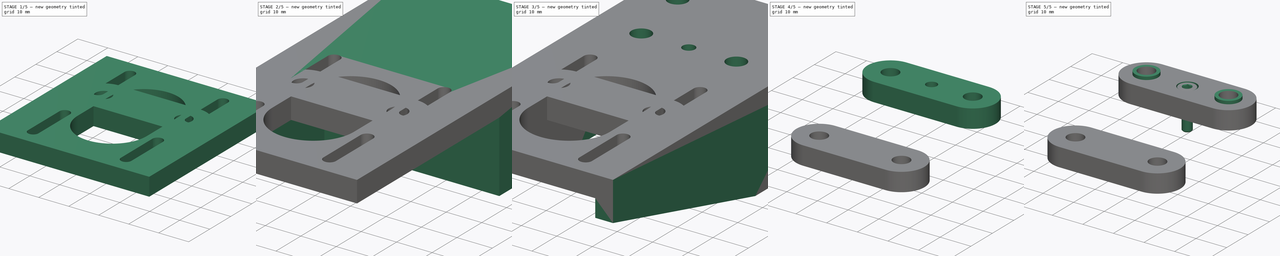
[diagram: build sequence overview — one tinted view per stage of 5, left to right]
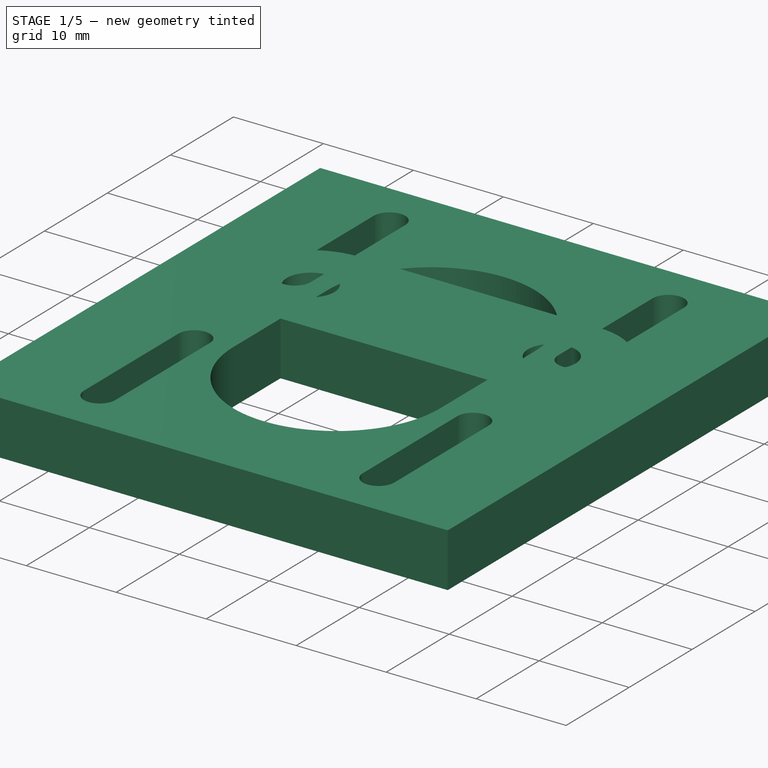
[diagram: stage 1 of 5 — iso view after this stage's code; geometry added in this stage tinted green]
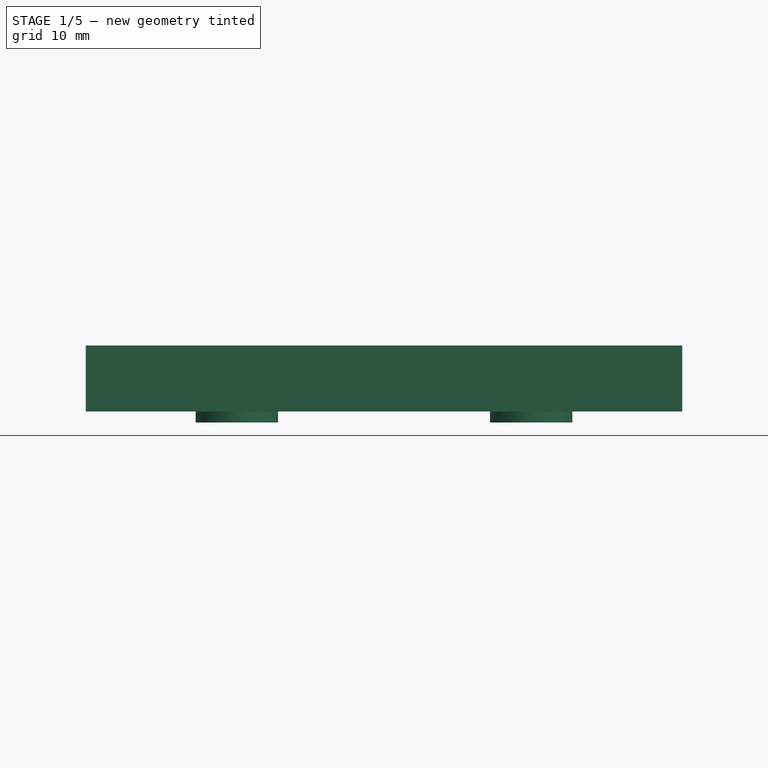
[diagram: stage 1 of 5 — front view after this stage's code; geometry added in this stage tinted green]
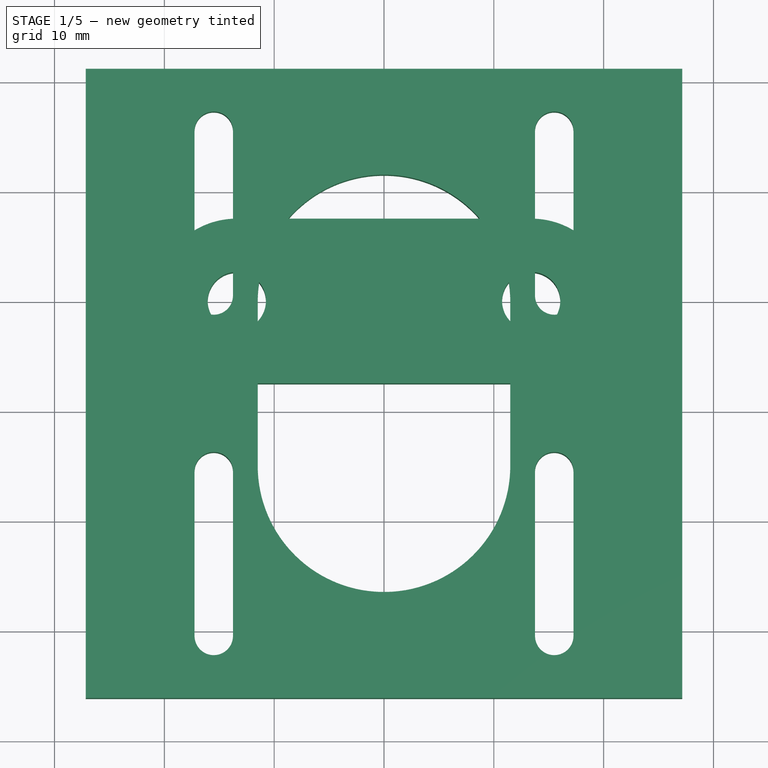
[diagram: stage 1 of 5 — top view after this stage's code; geometry added in this stage tinted green]
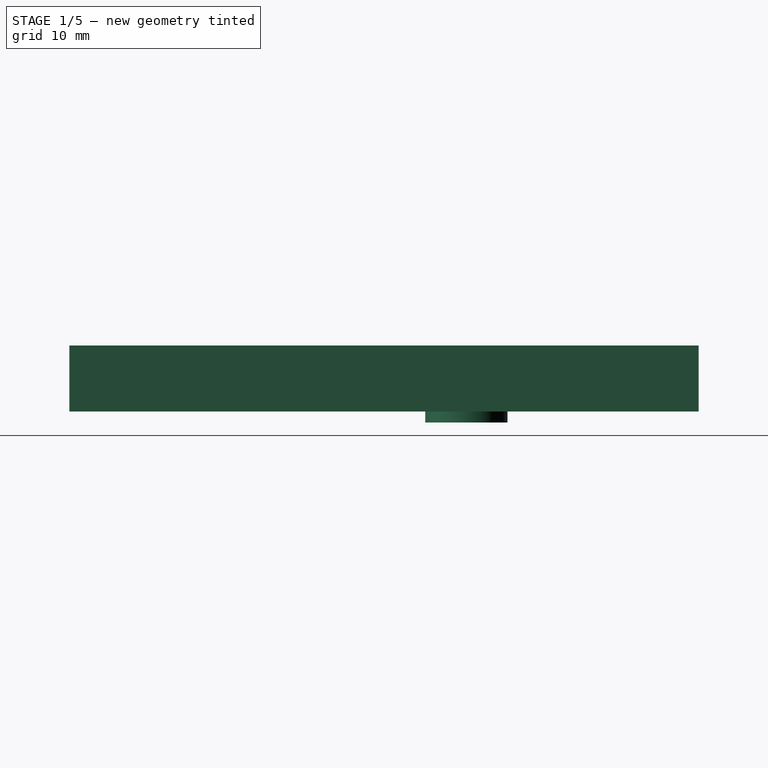
[diagram: stage 1 of 5 — right view after this stage's code; geometry added in this stage tinted green]
FCSTD DOCUMENT  (FreeCAD 0.20R27861 (Git))
Label: Z motor bracket
License: All rights reserved
LicenseURL: http://en.wikipedia.org/wiki/All_rights_reserved
objects: Sketcher::SketchObject×14, PartDesign::Pad×7, PartDesign::Pocket×7, PartDesign::Body×3, Part::Feature×1, PartDesign::ShapeBinder×1, PartDesign::Mirrored×1, PartDesign::SubShapeBinder×1, Part::FeaturePython×1
note: 50 computed .brp shape members not serialized (recipe doc carries the construction recipe); baked Part::Feature solids carry a one-line shape summary decoded from their .brp

FEATURE [Part::Feature] Part__Feature  label="17HS4401"
  Placement = pos=(0,0,-40) rot=(0,0,1;0rad)
  shape: bbox 42.3 x 45.3 x 64 mm, 44 faces (baked)
FEATURE [PartDesign::ShapeBinder] ShapeBinder
  Placement = pos=(0,0,-40) rot=(0,0,1;0rad)
  Support = -> [Part__Feature]
  TraceSupport = false
FEATURE [Sketcher::SketchObject] Sketch
  ExternalGeometry = -> [ShapeBinder]
  FullyConstrained = true
  MapMode = 5
  Support = -> [XY_Plane]
  sketch-geometry (28):
    g0: ArcOfCircle CenterX=-15.5 CenterY=15.5 CenterZ=0 NormalX=0 NormalY=0 NormalZ=1 AngleXU=0 Radius=1.75 StartAngle=0 EndAngle=3.14159
    g1: ArcOfCircle CenterX=-15.5 CenterY=0.5 CenterZ=0 NormalX=0 NormalY=0 NormalZ=1 AngleXU=0 Radius=1.75 StartAngle=3.14159 EndAngle=6.28319
    g2: LineSegment StartX=-17.25 StartY=15.5 StartZ=0 EndX=-17.25 EndY=0.5 EndZ=0
    g3: LineSegment StartX=-13.75 StartY=0.5 StartZ=0 EndX=-13.75 EndY=15.5 EndZ=0
    g4: ArcOfCircle CenterX=15.5 CenterY=15.5 CenterZ=0 NormalX=0 NormalY=0 NormalZ=1 AngleXU=0 Radius=1.75 StartAngle=3e-16 EndAngle=3.14159
    g5: ArcOfCircle CenterX=15.5 CenterY=0.5 CenterZ=0 NormalX=0 NormalY=0 NormalZ=1 AngleXU=0 Radius=1.75 StartAngle=3.14159 EndAngle=6.28319
    g6: LineSegment StartX=13.75 StartY=15.5 StartZ=0 EndX=13.75 EndY=0.5 EndZ=0
    g7: LineSegment StartX=17.25 StartY=0.5 StartZ=0 EndX=17.25 EndY=15.5 EndZ=0
    g8: ArcOfCircle CenterX=-15.5 CenterY=-15.5 CenterZ=0 NormalX=0 NormalY=0 NormalZ=1 AngleXU=0 Radius=1.75 StartAngle=5e-16 EndAngle=3.14159
    g9: ArcOfCircle CenterX=-15.5 CenterY=-30.5 CenterZ=0 NormalX=0 NormalY=0 NormalZ=1 AngleXU=0 Radius=1.75 StartAngle=3.14159 EndAngle=6.28319
    g10: LineSegment StartX=-17.25 StartY=-15.5 StartZ=0 EndX=-17.25 EndY=-30.5 EndZ=0
    g11: LineSegment StartX=-13.75 StartY=-30.5 StartZ=0 EndX=-13.75 EndY=-15.5 EndZ=0
    g12: ArcOfCircle CenterX=15.5 CenterY=-15.5 CenterZ=0 NormalX=0 NormalY=0 NormalZ=1 AngleXU=0 Radius=1.75 StartAngle=5e-16 EndAngle=3.14159
    g13: ArcOfCircle CenterX=15.5 CenterY=-30.5 CenterZ=0 NormalX=0 NormalY=0 NormalZ=1 AngleXU=0 Radius=1.75 StartAngle=3.14159 EndAngle=6.28319
    g14: LineSegment StartX=13.75 StartY=-15.5 StartZ=0 EndX=13.75 EndY=-30.5 EndZ=0
    g15: LineSegment StartX=17.25 StartY=-30.5 StartZ=0 EndX=17.25 EndY=-15.5 EndZ=0
    g16: LineSegment StartX=-27.15 StartY=21.15 StartZ=0 EndX=27.15 EndY=21.15 EndZ=0
    g17: LineSegment StartX=27.15 StartY=21.15 StartZ=0 EndX=27.15 EndY=-36.15 EndZ=0
    g18: LineSegment StartX=27.15 StartY=-36.15 StartZ=0 EndX=-27.15 EndY=-36.15 EndZ=0
    g19: LineSegment StartX=-27.15 StartY=-36.15 StartZ=0 EndX=-27.15 EndY=21.15 EndZ=0
    g20: LineSegment StartX=-15.5 StartY=15.5 StartZ=0 EndX=-15.5 EndY=21.15 EndZ=0
    g21: LineSegment StartX=-15.5 StartY=-30.5 StartZ=0 EndX=-15.5 EndY=-36.15 EndZ=0
    g22: ArcOfCircle CenterX=0 CenterY=0 CenterZ=0 NormalX=0 NormalY=0 NormalZ=1 AngleXU=0 Radius=11.5 StartAngle=0 EndAngle=3.14159
    g23: ArcOfCircle CenterX=0 CenterY=-15 CenterZ=0 NormalX=0 NormalY=0 NormalZ=1 AngleXU=0 Radius=11.5 StartAngle=3.14159 EndAngle=6.28319
    g24: LineSegment StartX=-11.5 StartY=1.4e-15 StartZ=0 EndX=-11.5 EndY=-15 EndZ=0
    g25: LineSegment StartX=11.5 StartY=-15 StartZ=0 EndX=11.5 EndY=0 EndZ=0
    g26: LineSegment StartX=-15.5 StartY=15.5 StartZ=0 EndX=-15.5 EndY=0.5 EndZ=0
    g27: LineSegment StartX=0 StartY=0 StartZ=0 EndX=0 EndY=-15 EndZ=0
  constraints (66):
    c: Tangent(g0,g2) = -1.5708
    c: Tangent(g2,g1) = -1.5708
    c: Tangent(g1,g3) = -1.5708
    c: Tangent(g3,g0) = -1.5708
    c: Equal(g0,g1)
    c: Vertical(g1,g0)
    c: Coincident(g0,g-5)
    c: Diameter(g0) = 3.5
    c: DistanceY(g1,g0) = 15
    c: Tangent(g4,g6) = -1.5708
    c: Tangent(g6,g5) = -1.5708
    c: Tangent(g5,g7) = -1.5708
    c: Tangent(g7,g4) = -1.5708
    c: Equal(g4,g5)
    c: Vertical(g5,g4)
    c: Coincident(g4,g-4)
    c: Equal(g4,g0)
    c: Equal(g3,g6)
    c: Tangent(g8,g10) = -1.5708
    c: Tangent(g10,g9) = -1.5708
    c: Tangent(g9,g11) = -1.5708
    c: Tangent(g11,g8) = -1.5708
    c: Equal(g8,g9)
    c: Coincident(g8,g-6)
    c: Vertical(g10)
    c: Equal(g8,g0)
    c: Equal(g3,g11)
    c: Tangent(g12,g14) = -1.5708
    c: Tangent(g14,g13) = -1.5708
    c: Tangent(g13,g15) = -1.5708
    c: Tangent(g15,g12) = -1.5708
    c: Equal(g12,g13)
    c: Coincident(g12,g-7)
    c: Vertical(g14)
    c: Equal(g0,g12)
    c: Equal(g14,g3)
    c: Coincident(g16,g17)
    c: Coincident(g17,g18)
    c: Coincident(g18,g19)
    c: Coincident(g19,g16)
    c: Horizontal(g18)
    c: Vertical(g17)
    c: Vertical(g19)
    c: Horizontal(g16,g-9)
    c: Coincident(g20,g0)
    c: PointOnObject(g20,g16)
    c: Vertical(g20)
    c: Coincident(g21,g9)
    c: PointOnObject(g21,g18)
    c: Vertical(g21)
    c: Equal(g20,g21)
    c: Symmetric(g16,g16,g-2)
    c: DistanceX(g-8,g16) = 6
    c: Tangent(g22,g24) = -1.5708
    c: Tangent(g24,g23) = -1.5708
    c: Tangent(g23,g25) = -1.5708
    c: Tangent(g25,g22) = -1.5708
    c: Equal(g22,g23)
    c: Coincident(g22,g-1)
    c: PointOnObject(g23,g-2)
    c: Diameter(g22) = 23
    c: Coincident(g26,g0)
    c: Coincident(g26,g1)
    c: Coincident(g27,g22)
    c: Coincident(g27,g23)
    c: Equal(g27,g26)
FEATURE [PartDesign::Pad] Pad
  Direction = (0,0,1)
  Length = 6
  Length2 = 100
  Profile = -> Sketch
  ReferenceAxis = -> Sketch [N_Axis]
  Refine = true
  Type = 0
FEATURE [PartDesign::Body] Body001
  Group = -> [Binder,Sketch009,Pad003,Sketch010,Pad004,Sketch011,Pocket006]
  Origin = -> Origin001
  Tip = -> Pocket006
FEATURE [Sketcher::SketchObject] Sketch012
  FullyConstrained = true
  MapMode = 5
  Support = -> [XY_Plane002]
  sketch-geometry (6):
    g0: Circle CenterX=-13.4 CenterY=0 CenterZ=0 NormalX=0 NormalY=0 NormalZ=1 AngleXU=0 Radius=2.65
    g1: Circle CenterX=13.4 CenterY=0 CenterZ=0 NormalX=0 NormalY=0 NormalZ=1 AngleXU=0 Radius=2.65
    g2: ArcOfCircle CenterX=-13.4 CenterY=0 CenterZ=0 NormalX=0 NormalY=0 NormalZ=1 AngleXU=0 Radius=7.5 StartAngle=1.5708 EndAngle=4.71239
    g3: ArcOfCircle CenterX=13.4 CenterY=0 CenterZ=0 NormalX=0 NormalY=0 NormalZ=1 AngleXU=0 Radius=7.5 StartAngle=4.71238 EndAngle=7.85398
    g4: LineSegment StartX=-13.4 StartY=7.5 StartZ=0 EndX=13.4 EndY=7.5 EndZ=0
    g5: LineSegment StartX=-13.4 StartY=-7.5 StartZ=0 EndX=13.4 EndY=-7.5 EndZ=0
  constraints (17):
    c: PointOnObject(g0,g-1)
    c: DistanceX(g0,g-1) = 13.4
    c: Diameter(g0) = 5.3
    c: Symmetric(g1,g0,g-1)
    c: Equal(g0,g1)
    c: Coincident(g2,g0)
    c: Coincident(g3,g1)
    c: Diameter(g3) = 15
    c: Coincident(g4,g2)
    c: Coincident(g4,g3)
    c: Horizontal(g4)
    c: Coincident(g5,g2)
    c: Coincident(g5,g3)
    c: Horizontal(g5)
    c: Vertical(g3,g1)
    c: Vertical(g2,g0)
    c: Vertical(g0,g2)
FEATURE [PartDesign::Pad] Pad005
  Direction = (0,0,1)
  Length = 6
  Length2 = 10
  Profile = -> Sketch012
  ReferenceAxis = -> Sketch012 [N_Axis]
  Refine = true
  Type = 0
FEATURE [Sketcher::SketchObject] Sketch014
  FullyConstrained = false
  MapMode = 5
  Placement = pos=(0,0,0) rot=(1,0,0;3.14159rad)
  sketch-geometry (4):
    g0: Circle CenterX=-13.4 CenterY=0 CenterZ=0 NormalX=0 NormalY=0 NormalZ=1 AngleXU=0 Radius=3.75
    g1: Circle CenterX=13.4 CenterY=0 CenterZ=0 NormalX=0 NormalY=0 NormalZ=1 AngleXU=0 Radius=3.75
    g2: Circle CenterX=-13.4 CenterY=0 CenterZ=0 NormalX=0 NormalY=0 NormalZ=1 AngleXU=0 Radius=2.65
    g3: Circle CenterX=13.4 CenterY=0 CenterZ=0 NormalX=0 NormalY=0 NormalZ=1 AngleXU=0 Radius=2.65
  constraints (4):
    c: Coincident(g2,g0)
    c: Coincident(g3,g1)
    c: Diameter(g0) = 7.5
    c: Equal(g0,g1)
FEATURE [PartDesign::Pad] Pad006
  BaseFeature = -> Pad005
  Direction = (0,0,-1)
  Length = 1
  Length2 = 10
  Profile = -> Sketch014
  ReferenceAxis = -> Sketch014 [N_Axis]
  Refine = true
  Type = 0
FEATURE [PartDesign::Body] Body002
  Group = -> [Sketch012,Pad005,Sketch014,Pad006]
  Origin = -> Origin002
  Placement = pos=(0,33.1,25) rot=(0,0,1;0rad)
  Tip = -> Pad006
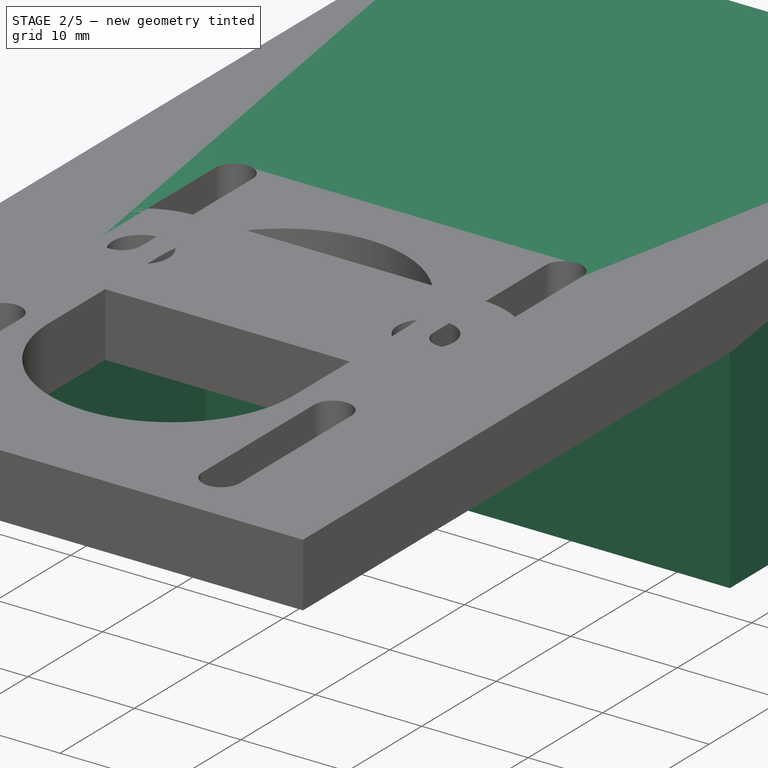
[diagram: stage 2 of 5 — iso view after this stage's code; geometry added in this stage tinted green]
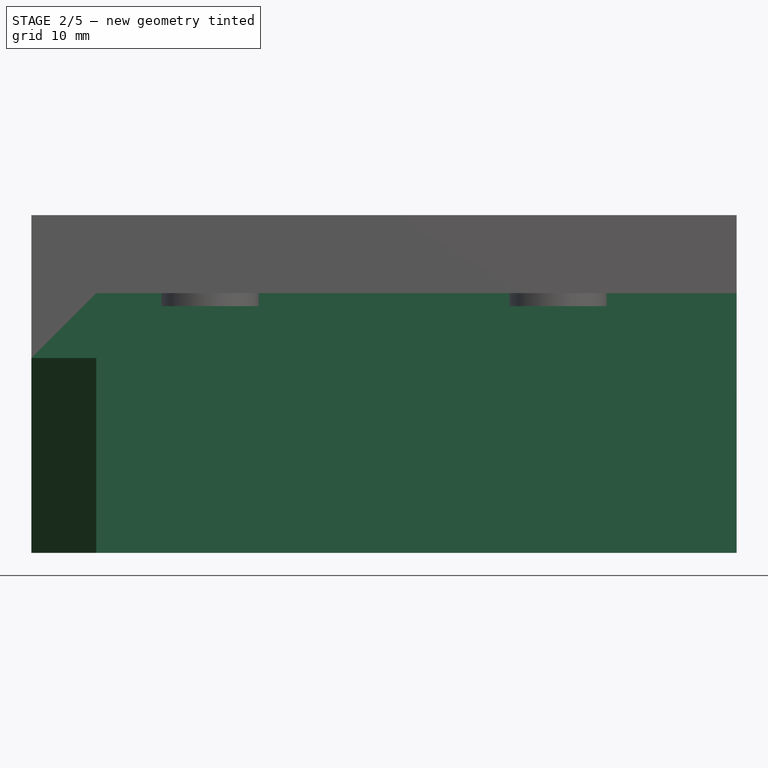
[diagram: stage 2 of 5 — front view after this stage's code; geometry added in this stage tinted green]
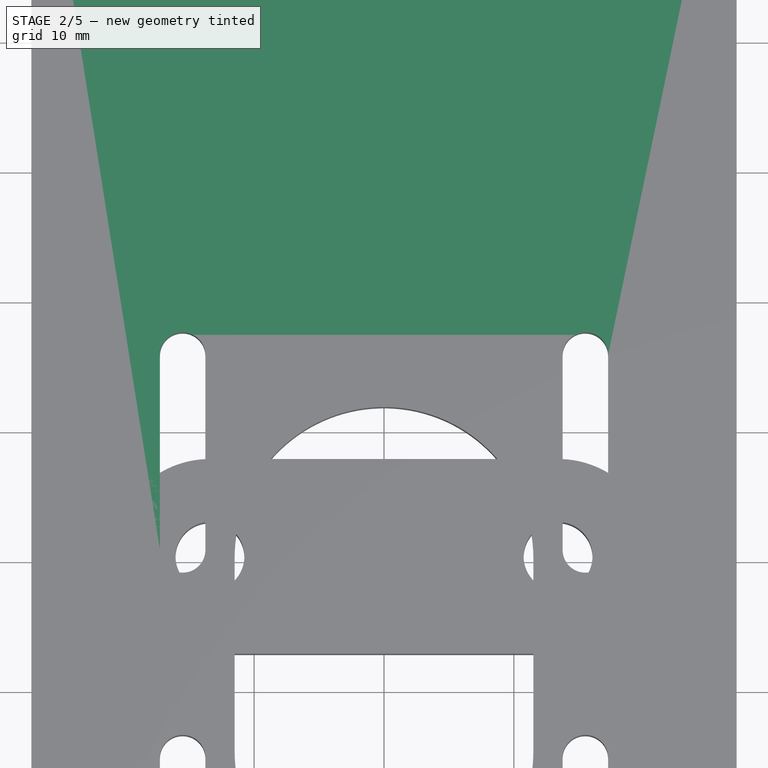
[diagram: stage 2 of 5 — top view after this stage's code; geometry added in this stage tinted green]
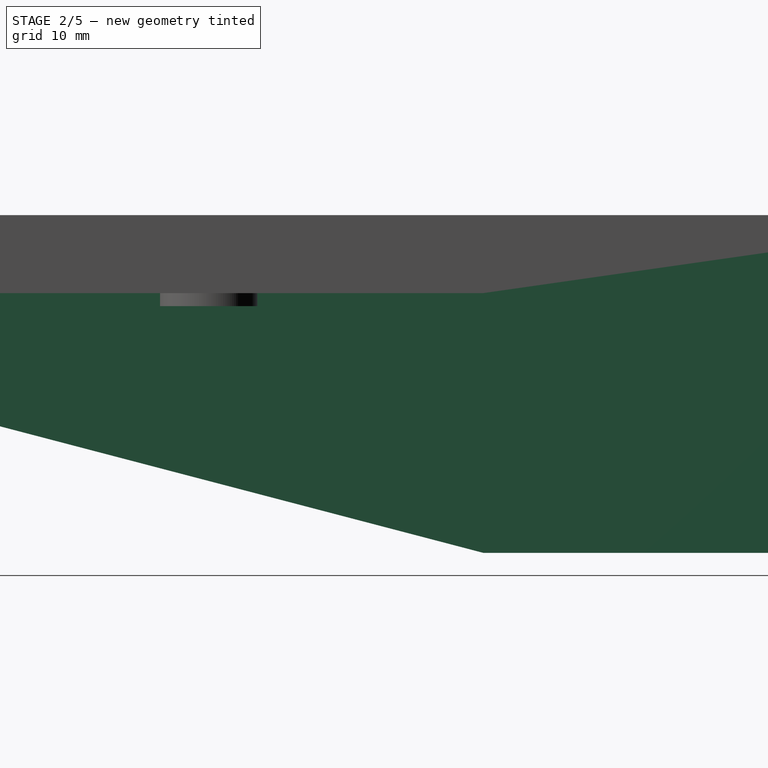
[diagram: stage 2 of 5 — right view after this stage's code; geometry added in this stage tinted green]
FEATURE [Sketcher::SketchObject] Sketch001
  ExternalGeometry = -> [Pad]
  FullyConstrained = true
  MapMode = 5
  Placement = pos=(0,21.15,0) rot=(0,0.707107,0.707107;3.14159rad)
  Support = -> [Pad]
  sketch-geometry (4):
    g0: LineSegment StartX=-27.15 StartY=6 StartZ=0 EndX=27.15 EndY=6 EndZ=0
    g1: LineSegment StartX=27.15 StartY=6 StartZ=0 EndX=27.15 EndY=-20 EndZ=0
    g2: LineSegment StartX=27.15 StartY=-20 StartZ=0 EndX=-27.15 EndY=-20 EndZ=0
    g3: LineSegment StartX=-27.15 StartY=-20 StartZ=0 EndX=-27.15 EndY=6 EndZ=0
  constraints (10):
    c: Coincident(g0,g1)
    c: Coincident(g1,g2)
    c: Coincident(g2,g3)
    c: Coincident(g3,g0)
    c: Horizontal(g2)
    c: Vertical(g1)
    c: Vertical(g3)
    c: Coincident(g0,g-3)
    c: Coincident(g-4,g0)
    c: DistanceY(g1,g-1) = 20
FEATURE [PartDesign::Pad] Pad001
  BaseFeature = -> Pad
  Direction = (0,1,-2e-16)
  Length = 42
  Length2 = 100
  Profile = -> Sketch001
  ReferenceAxis = -> Sketch001 [N_Axis]
  Refine = true
  Type = 0
FEATURE [Sketcher::SketchObject] Sketch002
  ExternalGeometry = -> [Pad001]
  FullyConstrained = true
  MapMode = 5
  Placement = pos=(27.15,0,0) rot=(0.57735,0.57735,0.57735;2.0944rad)
  Support = -> [Pad001]
  sketch-geometry (4):
    g0: LineSegment StartX=43.15 StartY=0 StartZ=0 EndX=63.15 EndY=0 EndZ=0
    g1: LineSegment StartX=63.15 StartY=0 StartZ=0 EndX=63.15 EndY=-20 EndZ=0
    g2: LineSegment StartX=63.15 StartY=-20 StartZ=0 EndX=43.15 EndY=-20 EndZ=0
    g3: LineSegment StartX=43.15 StartY=-20 StartZ=0 EndX=43.15 EndY=0 EndZ=0
  constraints (11):
    c: Coincident(g0,g1)
    c: Coincident(g1,g2)
    c: Coincident(g2,g3)
    c: Coincident(g3,g0)
    c: Horizontal(g0)
    c: Horizontal(g2)
    c: Vertical(g1)
    c: Vertical(g3)
    c: PointOnObject(g0,g-1)
    c: Coincident(g1,g-3)
    c: DistanceX(g2,g2) = 20
FEATURE [PartDesign::Pocket] Pocket
  BaseFeature = -> Pad001
  Direction = (-1,0,0)
  Length = 5
  Length2 = 100
  Profile = -> Sketch002
  ReferenceAxis = -> Sketch002 [N_Axis]
  Refine = true
  Type = 1
FEATURE [Sketcher::SketchObject] Sketch003
  ExternalGeometry = -> [Pocket]
  FullyConstrained = true
  MapMode = 5
  Placement = pos=(-27.15,0,0) rot=(0.57735,-0.57735,-0.57735;2.0944rad)
  Support = -> [Pocket]
  sketch-geometry (4):
    g0: LineSegment StartX=36.15 StartY=0 StartZ=0 EndX=36.15 EndY=-5 EndZ=0
    g1: LineSegment StartX=-21.15 StartY=-20 StartZ=0 EndX=36.15 EndY=-5 EndZ=0
    g2: LineSegment StartX=-21.15 StartY=-20 StartZ=0 EndX=-21.15 EndY=0 EndZ=0
    g3: LineSegment StartX=-21.15 StartY=0 StartZ=0 EndX=36.15 EndY=0 EndZ=0
  constraints (10):
    c: Coincident(g0,g-3)
    c: Vertical(g0)
    c: DistanceY(g0,g0) = 5
    c: Coincident(g1,g-4)
    c: Coincident(g1,g0)
    c: Coincident(g2,g1)
    c: PointOnObject(g2,g-1)
    c: Vertical(g2)
    c: Coincident(g3,g2)
    c: Coincident(g3,g0)
FEATURE [PartDesign::Pad] Pad002
  BaseFeature = -> Pocket
  Direction = (-1,0,0)
  Length = 5
  Length2 = 100
  Profile = -> Sketch003
  ReferenceAxis = -> Sketch003 [N_Axis]
  Refine = true
  Reversed = true
  Type = 0
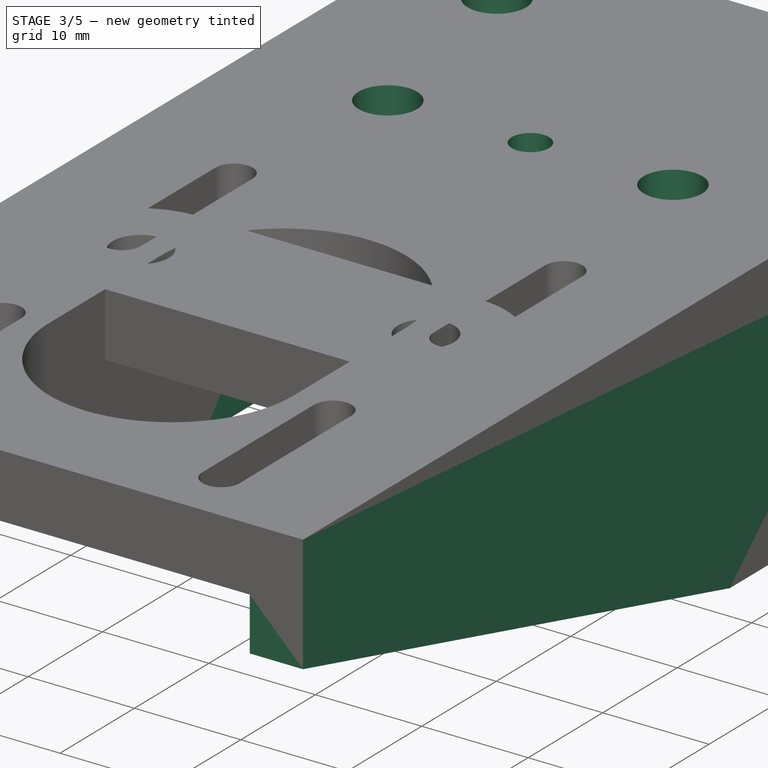
[diagram: stage 3 of 5 — iso view after this stage's code; geometry added in this stage tinted green]
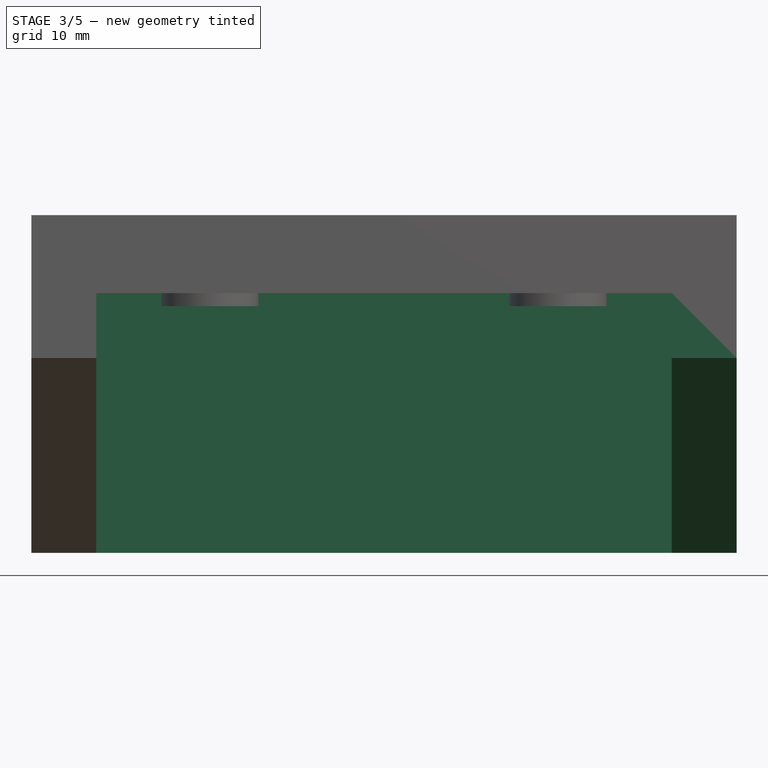
[diagram: stage 3 of 5 — front view after this stage's code; geometry added in this stage tinted green]
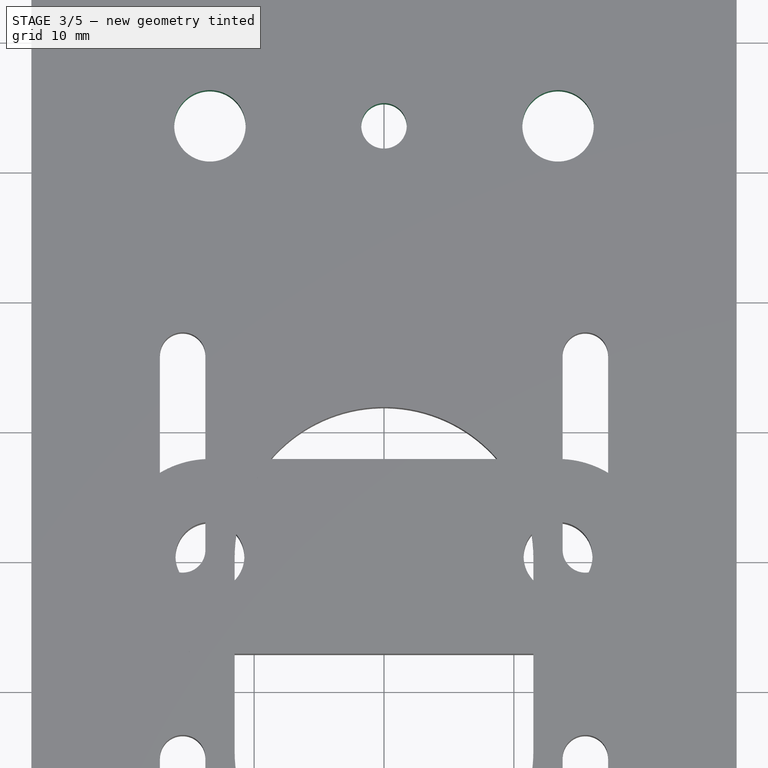
[diagram: stage 3 of 5 — top view after this stage's code; geometry added in this stage tinted green]
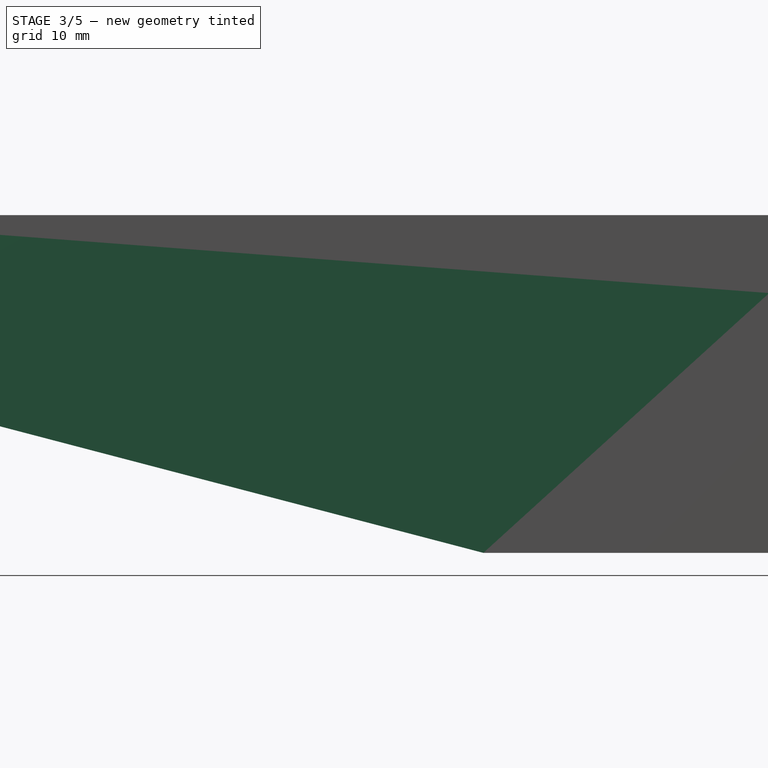
[diagram: stage 3 of 5 — right view after this stage's code; geometry added in this stage tinted green]
FEATURE [PartDesign::Mirrored] Mirrored
  BaseFeature = -> Pad002
  MirrorPlane = -> YZ_Plane
  Originals = -> [Pad002]
  Overlap = 0
  Refine = true
FEATURE [Sketcher::SketchObject] Sketch004
  ExternalGeometry = -> [Mirrored]
  FullyConstrained = true
  MapMode = 5
  Placement = pos=(0,0,0) rot=(1,0,0;3.14159rad)
  Support = -> [Mirrored]
  sketch-geometry (2):
    g0: Circle CenterX=-17.15 CenterY=-53.15 CenterZ=0 NormalX=0 NormalY=0 NormalZ=1 AngleXU=0 Radius=2.75
    g1: Circle CenterX=17.15 CenterY=-53.15 CenterZ=0 NormalX=0 NormalY=0 NormalZ=1 AngleXU=0 Radius=2.75
  constraints (5):
    c: Symmetric(g0,g1,g-2)
    c: DistanceY(g0,g-3) = 10
    c: Diameter(g0) = 5.5
    c: Equal(g0,g1)
    c: DistanceX(g-3,g0) = 10
FEATURE [PartDesign::Pocket] Pocket001
  BaseFeature = -> Mirrored
  Direction = (0,0,1)
  Length = 5
  Length2 = 100
  Profile = -> Sketch004
  ReferenceAxis = -> Sketch004 [N_Axis]
  Refine = true
  Type = 1
FEATURE [Sketcher::SketchObject] Sketch005
  ExternalGeometry = -> [Pocket001]
  FullyConstrained = true
  MapMode = 5
  Placement = pos=(0,21.15,-3e-15) rot=(1,0,0;1.5708rad)
  Support = -> [Pocket001]
  sketch-geometry (4):
    g0: LineSegment StartX=-22.15 StartY=0 StartZ=0 EndX=22.15 EndY=0 EndZ=0
    g1: LineSegment StartX=22.15 StartY=0 StartZ=0 EndX=22.15 EndY=-20 EndZ=0
    g2: LineSegment StartX=22.15 StartY=-20 StartZ=0 EndX=-22.15 EndY=-20 EndZ=0
    g3: LineSegment StartX=-22.15 StartY=-20 StartZ=0 EndX=-22.15 EndY=0 EndZ=0
  constraints (10):
    c: Coincident(g0,g1)
    c: Coincident(g1,g2)
    c: Coincident(g2,g3)
    c: Coincident(g3,g0)
    c: Horizontal(g0)
    c: Horizontal(g2)
    c: Vertical(g1)
    c: Vertical(g3)
    c: Coincident(g0,g-3)
    c: Coincident(g1,g-4)
FEATURE [PartDesign::Pocket] Pocket002
  BaseFeature = -> Pocket001
  Direction = (0,1,-4e-16)
  Length = 0
  Length2 = 100
  Offset = -6
  Profile = -> Sketch005
  ReferenceAxis = -> Sketch005 [N_Axis]
  Refine = true
  Type = 3
  UpToFace = -> Pocket001 [Face32]
FEATURE [Sketcher::SketchObject] Sketch006
  ExternalGeometry = -> [Pocket002]
  FullyConstrained = true
  MapMode = 5
  Placement = pos=(0,0,1.6e-15) rot=(1,0,0;3.14159rad)
  Support = -> [Pocket002]
  sketch-geometry (3):
    g0: Circle CenterX=-13.4 CenterY=-33.15 CenterZ=0 NormalX=0 NormalY=0 NormalZ=1 AngleXU=0 Radius=2.75
    g1: Circle CenterX=13.4 CenterY=-33.15 CenterZ=0 NormalX=0 NormalY=0 NormalZ=1 AngleXU=0 Radius=2.75
    g2: Circle CenterX=0 CenterY=-33.15 CenterZ=0 NormalX=0 NormalY=0 NormalZ=1 AngleXU=0 Radius=1.75
  constraints (8):
    c: Equal(g0,g1)
    c: DistanceY(g-3,g0) = 10
    c: DistanceX(g-3,g0) = 13.75
    c: Diameter(g0) = 5.5
    c: Symmetric(g0,g1,g-2)
    c: PointOnObject(g2,g-2)
    c: Horizontal(g2,g1)
    c: Diameter(g2) = 3.5
FEATURE [PartDesign::Pocket] Pocket003
  BaseFeature = -> Pocket002
  Direction = (0,4e-16,1)
  Length = 5
  Length2 = 100
  Profile = -> Sketch006
  ReferenceAxis = -> Sketch006 [N_Axis]
  Refine = true
  Type = 1
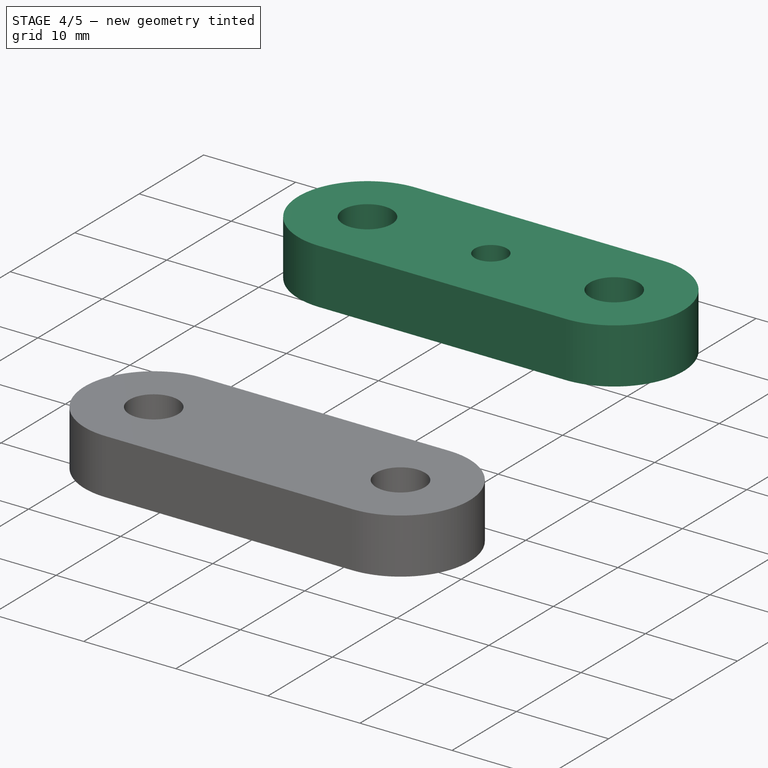
[diagram: stage 4 of 5 — iso view after this stage's code; geometry added in this stage tinted green]
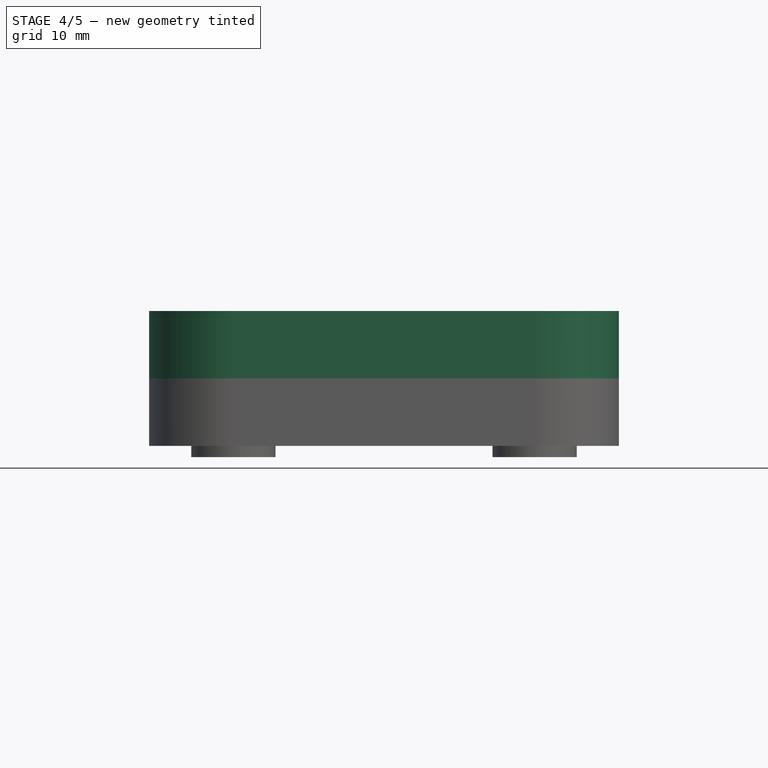
[diagram: stage 4 of 5 — front view after this stage's code; geometry added in this stage tinted green]
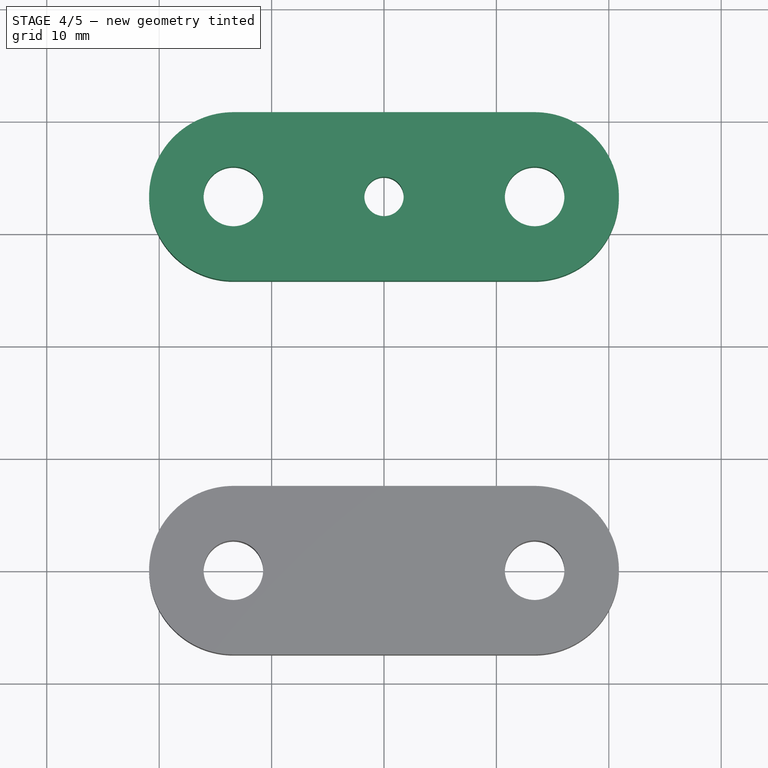
[diagram: stage 4 of 5 — top view after this stage's code; geometry added in this stage tinted green]
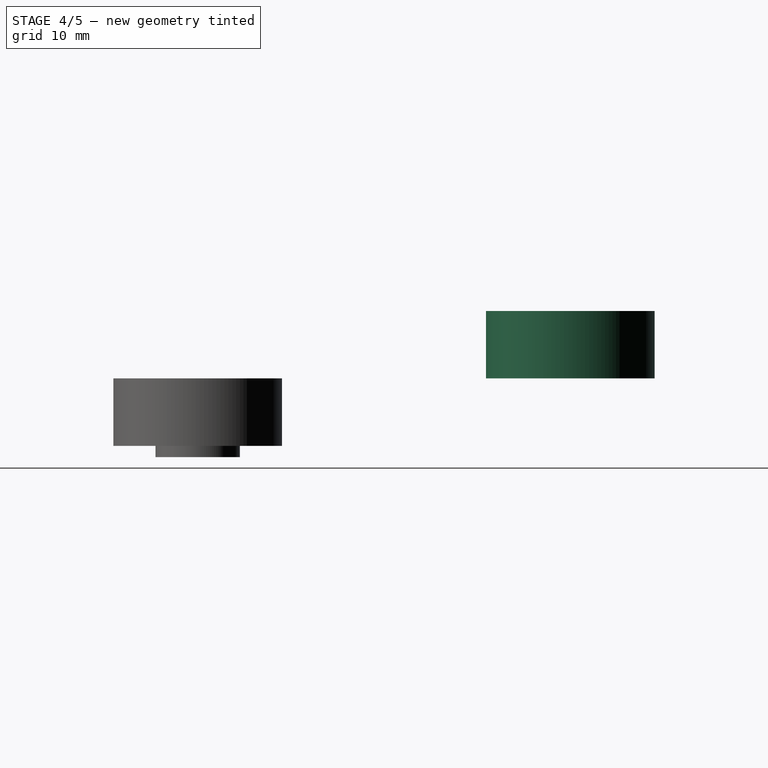
[diagram: stage 4 of 5 — right view after this stage's code; geometry added in this stage tinted green]
FEATURE [Sketcher::SketchObject] Sketch007
  ExternalGeometry = -> [Pocket003]
  FullyConstrained = true
  MapMode = 5
  Placement = pos=(0,0,-3.3e-15) rot=(1,0,0;3.14159rad)
  Support = -> [Pocket003]
  sketch-geometry (21):
    g0: LineSegment StartX=18.15 StartY=-33.15 StartZ=0 EndX=15.775 EndY=-29.0364 EndZ=0
    g1: LineSegment StartX=15.775 StartY=-29.0364 StartZ=0 EndX=11.025 EndY=-29.0364 EndZ=0
    g2: LineSegment StartX=11.025 StartY=-29.0364 StartZ=0 EndX=8.65 EndY=-33.15 EndZ=0
    g3: LineSegment StartX=8.65 StartY=-33.15 StartZ=0 EndX=11.025 EndY=-37.2636 EndZ=0
    g4: LineSegment StartX=11.025 StartY=-37.2636 StartZ=0 EndX=15.775 EndY=-37.2636 EndZ=0
    g5: LineSegment StartX=15.775 StartY=-37.2636 StartZ=0 EndX=18.15 EndY=-33.15 EndZ=0
    g6: Circle CenterX=13.4 CenterY=-33.15 CenterZ=0 NormalX=0 NormalY=0 NormalZ=1 AngleXU=0 Radius=4.75
    g7: LineSegment StartX=-8.65 StartY=-33.15 StartZ=0 EndX=-11.025 EndY=-29.0364 EndZ=0
    g8: LineSegment StartX=-11.025 StartY=-29.0364 StartZ=0 EndX=-15.775 EndY=-29.0364 EndZ=0
    g9: LineSegment StartX=-15.775 StartY=-29.0364 StartZ=0 EndX=-18.15 EndY=-33.15 EndZ=0
    g10: LineSegment StartX=-18.15 StartY=-33.15 StartZ=0 EndX=-15.775 EndY=-37.2636 EndZ=0
    g11: LineSegment StartX=-15.775 StartY=-37.2636 StartZ=0 EndX=-11.025 EndY=-37.2636 EndZ=0
    g12: LineSegment StartX=-11.025 StartY=-37.2636 StartZ=0 EndX=-8.65 EndY=-33.15 EndZ=0
    g13: Circle CenterX=-13.4 CenterY=-33.15 CenterZ=0 NormalX=0 NormalY=0 NormalZ=1 AngleXU=0 Radius=4.75
    g14: LineSegment StartX=3.25 StartY=-33.15 StartZ=0 EndX=1.625 EndY=-30.3354 EndZ=0
    g15: LineSegment StartX=1.625 StartY=-30.3354 StartZ=0 EndX=-1.625 EndY=-30.3354 EndZ=0
    g16: LineSegment StartX=-1.625 StartY=-30.3354 StartZ=0 EndX=-3.25 EndY=-33.15 EndZ=0
    g17: LineSegment StartX=-3.25 StartY=-33.15 StartZ=0 EndX=-1.625 EndY=-35.9646 EndZ=0
    g18: LineSegment StartX=-1.625 StartY=-35.9646 StartZ=0 EndX=1.625 EndY=-35.9646 EndZ=0
    g19: LineSegment StartX=1.625 StartY=-35.9646 StartZ=0 EndX=3.25 EndY=-33.15 EndZ=0
    g20: Circle CenterX=0 CenterY=-33.15 CenterZ=0 NormalX=0 NormalY=0 NormalZ=1 AngleXU=0 Radius=3.25
  constraints (48):
    c: Coincident(g0,g1)
    c: Coincident(g1,g2)
    c: Coincident(g2,g3)
    c: Coincident(g3,g4)
    c: Coincident(g4,g5)
    c: Coincident(g5,g0)
    c: Equal(g0, g1-g5) x5
    c: PointOnObject(g0,g6)
    c: PointOnObject(g1,g6)
    c: PointOnObject(g2,g6)
    c: PointOnObject(g3,g6)
    c: PointOnObject(g4,g6)
    c: PointOnObject(g5,g6)
    c: Coincident(g7,g8)
    c: Coincident(g8,g9)
    c: Coincident(g9,g10)
    c: Coincident(g10,g11)
    c: Coincident(g11,g12)
    c: Coincident(g12,g7)
    c: Equal(g7, g8-g12) x5
    c: PointOnObject(g7,g13)
    c: PointOnObject(g8,g13)
    c: PointOnObject(g9,g13)
    c: PointOnObject(g10,g13)
    c: PointOnObject(g11,g13)
    c: PointOnObject(g12,g13)
    c: Equal(g13,g6)
    c: Diameter(g6) = 9.5
    c: Horizontal(g1)
    c: Horizontal(g8)
    c: Coincident(g13,g-5)
    c: Coincident(g6,g-3)
    c: Coincident(g14,g15)
    c: Coincident(g15,g16)
    c: Coincident(g16,g17)
    c: Coincident(g17,g18)
    c: Coincident(g18,g19)
    c: Coincident(g19,g14)
    c: Equal(g14, g15-g19) x5
    c: PointOnObject(g14,g20)
    c: PointOnObject(g15,g20)
    c: PointOnObject(g16,g20)
    c: PointOnObject(g17,g20)
    c: PointOnObject(g18,g20)
    c: PointOnObject(g19,g20)
    c: Coincident(g20,g-4)
    c: Diameter(g20) = 6.5
    c: Horizontal(g15)
FEATURE [PartDesign::Pocket] Pocket004
  BaseFeature = -> Pocket003
  Direction = (-1e-16,2e-16,1)
  Length = 0
  Length2 = 100
  Offset = -4
  Profile = -> Sketch007
  ReferenceAxis = -> Sketch007 [N_Axis]
  Refine = true
  Type = 3
  UpToFace = -> Pocket003 [Face5]
FEATURE [Sketcher::SketchObject] Sketch008
  FullyConstrained = true
  MapMode = 5
  Placement = pos=(0,43.15,0) rot=(0,0.707107,0.707107;3.14159rad)
  Support = -> [Pocket004]
  sketch-geometry (4):
    g0: ArcOfCircle CenterX=0 CenterY=-10 CenterZ=0 NormalX=0 NormalY=0 NormalZ=1 AngleXU=0 Radius=2.75 StartAngle=0 EndAngle=3.14159
    g1: ArcOfCircle CenterX=0 CenterY=-30 CenterZ=0 NormalX=0 NormalY=0 NormalZ=1 AngleXU=0 Radius=2.75 StartAngle=3.14159 EndAngle=6.28319
    g2: LineSegment StartX=-2.75 StartY=-10 StartZ=0 EndX=-2.75 EndY=-30 EndZ=0
    g3: LineSegment StartX=2.75 StartY=-30 StartZ=0 EndX=2.75 EndY=-10 EndZ=0
  constraints (10):
    c: Tangent(g0,g2) = -1.5708
    c: Tangent(g2,g1) = -1.5708
    c: Tangent(g1,g3) = -1.5708
    c: Tangent(g3,g0) = -1.5708
    c: Equal(g0,g1)
    c: PointOnObject(g0,g-2)
    c: PointOnObject(g1,g-2)
    c: Diameter(g0) = 5.5
    c: DistanceY(g0,g-1) = 10
    c: DistanceY(g2,g2) = 20
FEATURE [PartDesign::SubShapeBinder] Binder
  BindCopyOnChange = 0
  BindMode = 0
  ClaimChildren = false
  Context = -> Body001 [Binder.]
  Fuse = false
  MakeFace = true
  PartialLoad = false
  Relative = true
  Support = -> [Body]
  _Version = 2
FEATURE [Sketcher::SketchObject] Sketch009
  ExternalGeometry = -> [Binder]
  FullyConstrained = true
  MapMode = 5
  Placement = pos=(0,5e-16,6) rot=(0,0,1;0rad)
  Support = -> [Binder]
  sketch-geometry (7):
    g0: Circle CenterX=-13.4 CenterY=33.15 CenterZ=0 NormalX=0 NormalY=0 NormalZ=1 AngleXU=0 Radius=2.65
    g1: Circle CenterX=13.4 CenterY=33.15 CenterZ=0 NormalX=0 NormalY=0 NormalZ=1 AngleXU=0 Radius=2.65
    g2: ArcOfCircle CenterX=-13.4 CenterY=33.15 CenterZ=0 NormalX=0 NormalY=0 NormalZ=1 AngleXU=0 Radius=7.5 StartAngle=1.5708 EndAngle=4.71239
    g3: ArcOfCircle CenterX=13.4 CenterY=33.15 CenterZ=0 NormalX=0 NormalY=0 NormalZ=1 AngleXU=0 Radius=7.5 StartAngle=4.71239 EndAngle=7.85398
    g4: LineSegment StartX=-13.4 StartY=40.65 StartZ=0 EndX=13.4 EndY=40.65 EndZ=0
    g5: LineSegment StartX=-13.4 StartY=25.65 StartZ=0 EndX=13.4 EndY=25.65 EndZ=0
    g6: Circle CenterX=0 CenterY=33.15 CenterZ=0 NormalX=0 NormalY=0 NormalZ=1 AngleXU=0 Radius=1.75
  constraints (16):
    c: Diameter(g0) = 5.3
    c: Coincident(g2,g0)
    c: Coincident(g3,g1)
    c: Equal(g2,g3)
    c: Coincident(g4,g3)
    c: Horizontal(g4)
    c: Coincident(g5,g3)
    c: Horizontal(g5)
    c: DistanceY(g2,g2) = 15
    c: Tangent(g5,g2) = -1.5708
    c: Tangent(g4,g2) = 1.5708
    c: Equal(g0,g1)
    c: Coincident(g0,g-3)
    c: Coincident(g-5,g1)
    c: Coincident(g6,g-4)
    c: Equal(g-4,g6)
FEATURE [PartDesign::Pad] Pad003
  Direction = (0,1e-16,1)
  Length = 6
  Length2 = 100
  Profile = -> Sketch009
  ReferenceAxis = -> Sketch009 [N_Axis]
  Refine = true
  Type = 0
FEATURE [Sketcher::SketchObject] Sketch010
  ExternalGeometry = -> [Pad003]
  FullyConstrained = true
  MapMode = 5
  Placement = pos=(0,1.2e-15,12) rot=(0,0,1;0rad)
  Support = -> [Pad003]
  sketch-geometry (4):
    g0: Circle CenterX=-13.4 CenterY=33.15 CenterZ=0 NormalX=0 NormalY=0 NormalZ=1 AngleXU=0 Radius=2.65
    g1: Circle CenterX=13.4 CenterY=33.15 CenterZ=0 NormalX=0 NormalY=0 NormalZ=1 AngleXU=0 Radius=2.65
    g2: Circle CenterX=-13.4 CenterY=33.15 CenterZ=0 NormalX=0 NormalY=0 NormalZ=1 AngleXU=0 Radius=3.75
    g3: Circle CenterX=13.4 CenterY=33.15 CenterZ=0 NormalX=0 NormalY=0 NormalZ=1 AngleXU=0 Radius=3.75
  constraints (8):
    c: Coincident(g0,g-3)
    c: Coincident(g1,g-4)
    c: Coincident(g2,g0)
    c: Coincident(g3,g1)
    c: Equal(g-3,g0)
    c: Equal(g-4,g1)
    c: Diameter(g2) = 7.5
    c: Equal(g2,g3)
FEATURE [PartDesign::Pocket] Pocket005
  BaseFeature = -> Pocket004
  Direction = (0,-1,2e-16)
  Length = 5
  Length2 = 100
  Profile = -> Sketch008
  ReferenceAxis = -> Sketch008 [N_Axis]
  Refine = true
  Type = 1
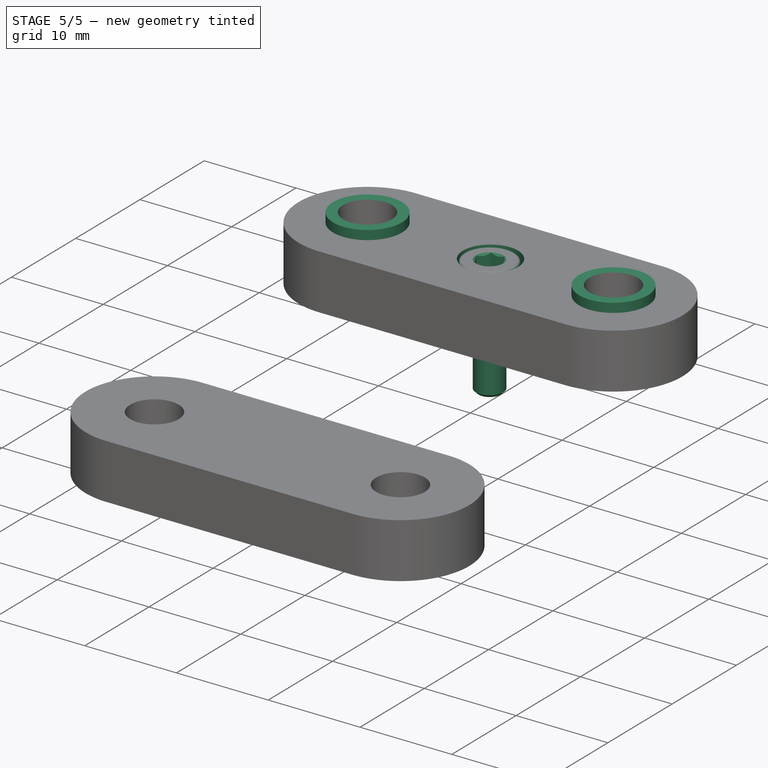
[diagram: stage 5 of 5 — iso view after this stage's code; geometry added in this stage tinted green]
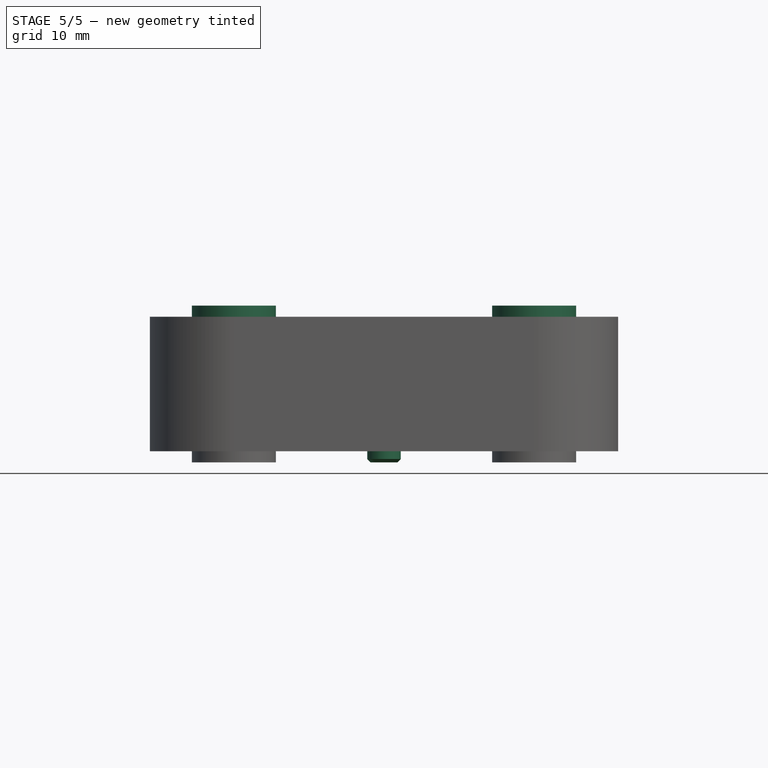
[diagram: stage 5 of 5 — front view after this stage's code; geometry added in this stage tinted green]
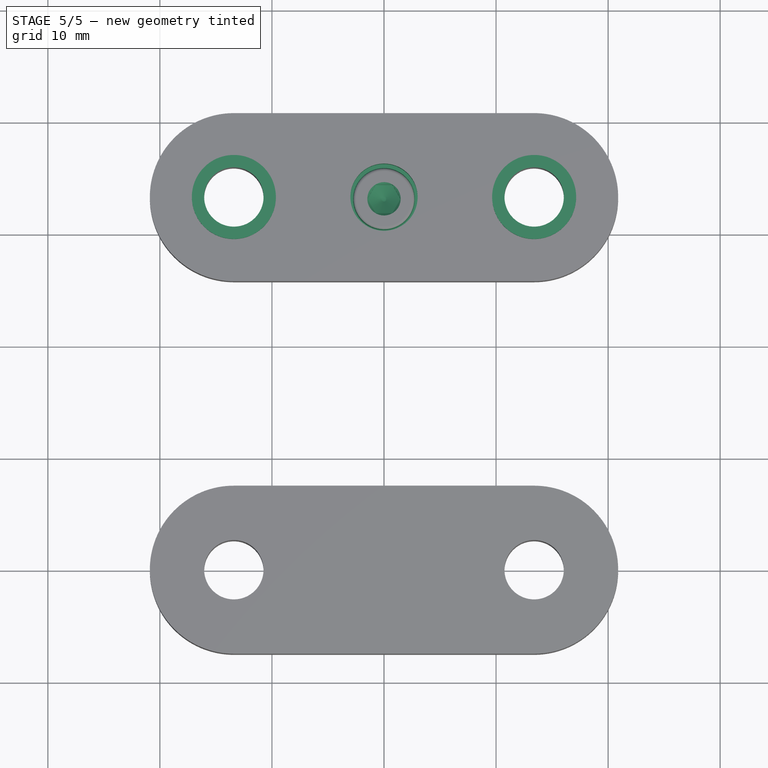
[diagram: stage 5 of 5 — top view after this stage's code; geometry added in this stage tinted green]
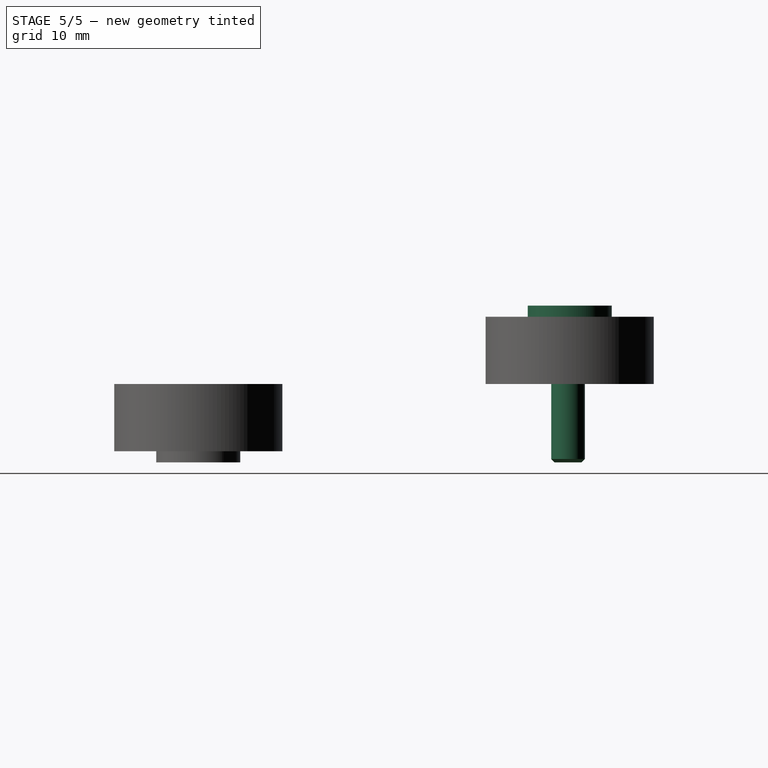
[diagram: stage 5 of 5 — right view after this stage's code; geometry added in this stage tinted green]
FEATURE [PartDesign::Body] Body
  Group = -> [ShapeBinder,Sketch,Pad,Sketch001,Pad001,Sketch002,Pocket,Sketch003,Pad002,Mirrored,Sketch004,Pocket001,Sketch005,Pocket002,Sketch006,Pocket003,Sketch007,Pocket004,Sketch008,Pocket005]
  Origin = -> Origin
  Tip = -> Pocket005
FEATURE [PartDesign::Pad] Pad004
  BaseFeature = -> Pad003
  Direction = (0,1e-16,1)
  Length = 1
  Length2 = 100
  Profile = -> Sketch010
  ReferenceAxis = -> Sketch010 [N_Axis]
  Refine = true
  Type = 0
FEATURE [Part::FeaturePython] Screw  label="M3x10-Screw"  # Fasteners workbench fastener (typed FeaturePython)
  Placement = pos=(0,33,9) rot=(0,0,1;0rad)
  diameter = 4
  invert = false
  length = 3
  lengthCustom = 10
  matchOuter = false
  offset = 0
  thread = false
  type = 34
FEATURE [Sketcher::SketchObject] Sketch011
  ExternalGeometry = -> [Pad004]
  FullyConstrained = true
  MapMode = 5
  Placement = pos=(0,1.2e-15,12) rot=(0,0,1;0rad)
  Support = -> [Pad004]
  sketch-geometry (1):
    g0: Circle CenterX=0 CenterY=33.15 CenterZ=0 NormalX=0 NormalY=0 NormalZ=1 AngleXU=0 Radius=3
  constraints (2):
    c: Coincident(g0,g-3)
    c: Diameter(g0) = 6
FEATURE [PartDesign::Pocket] Pocket006
  BaseFeature = -> Pad004
  Direction = (0,-1e-16,-1)
  Length = 3
  Length2 = 100
  Profile = -> Sketch011
  ReferenceAxis = -> Sketch011 [N_Axis]
  Refine = true
  Type = 0
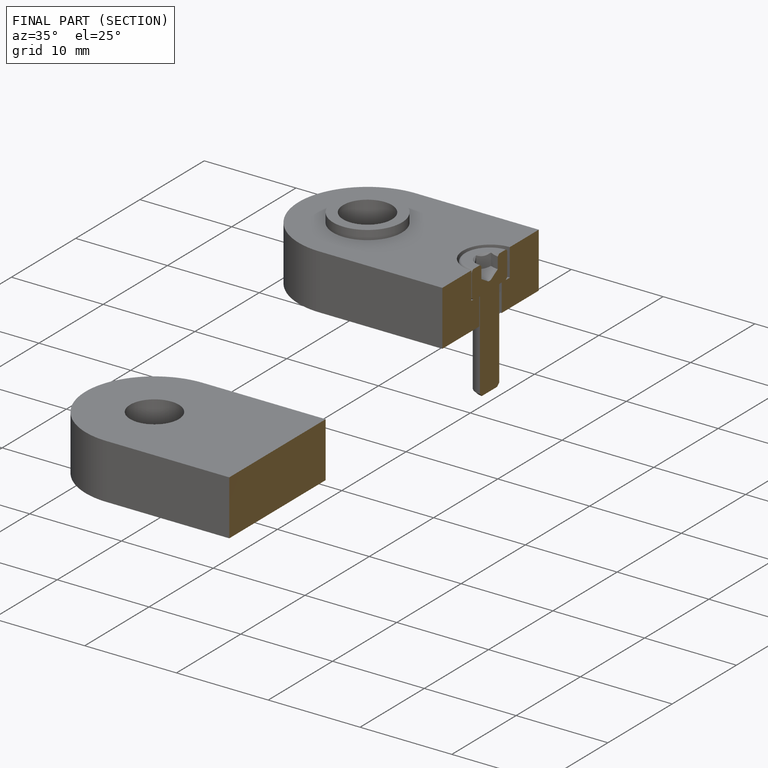
[diagram: finished part — half-section view (interior)]
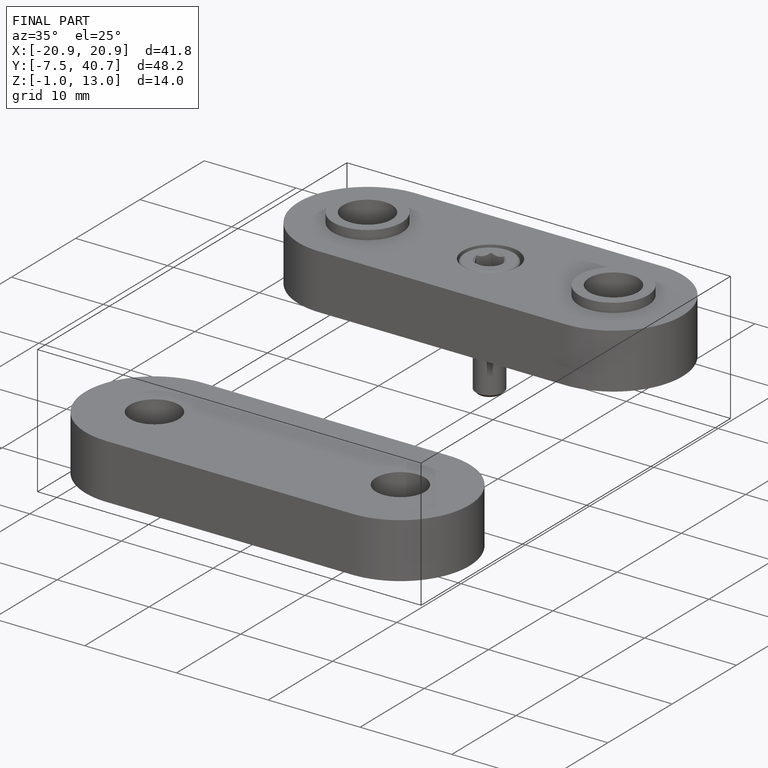
[diagram: finished part — iso view with bounding-box wireframe]
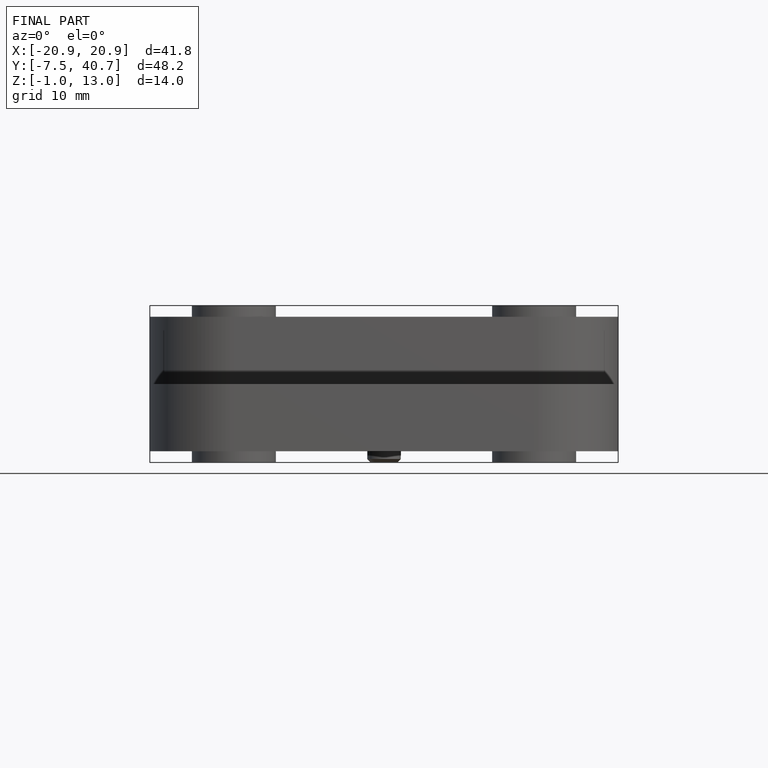
[diagram: finished part — front view with bounding-box wireframe]
